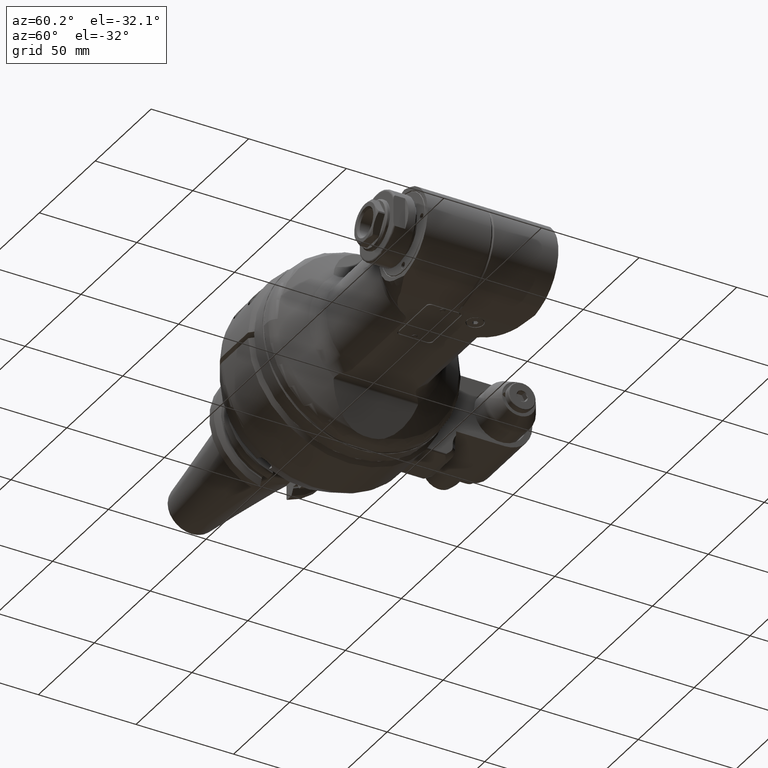
[diagram: clean part render]
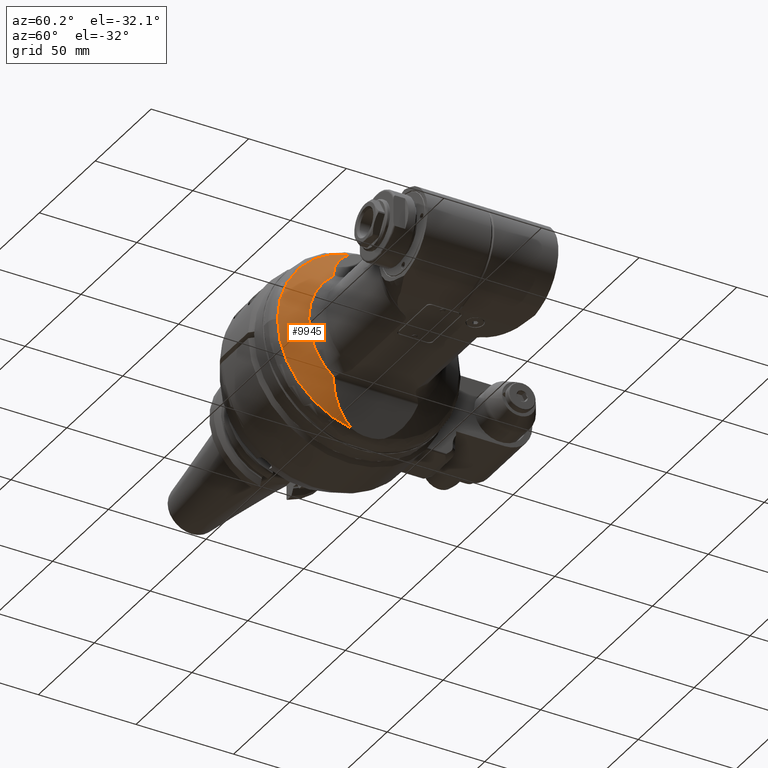
[diagram: same view with one face highlighted and labeled with its STEP entity id]
A machine part, auxiliary view. The second image highlights one B-rep face of the part: STEP entity #9945.
In plain terms, the highlighted conical surface has half-angle 60 deg.
Its self-contained STEP definition (entity closure, byte-faithful):
#56=ELLIPSE('',#10702,31.1727494163443,22.7387822282697);
#58=ELLIPSE('',#10708,31.1727494163443,22.7387822282698);
#73=B_SPLINE_CURVE_WITH_KNOTS('',3,(#15269,#15270,#15271,#15272,#15273,
#15274,#15275,#15276),.UNSPECIFIED.,.F.,.F.,(4,2,2,4),(-2.26058373671242,
-2.22722554832336,-2.19364969071324,-2.18673200160694),.UNSPECIFIED.);
#78=B_SPLINE_CURVE_WITH_KNOTS('',3,(#15324,#15325,#15326,#15327,#15328,
#15329,#15330,#15331),.UNSPECIFIED.,.F.,.F.,(4,2,2,4),(-4.49336199562233,
-4.47017861094728,-4.43766754537717,-4.4182121191954),.UNSPECIFIED.);
#512=CONICAL_SURFACE('',#10704,40.5,1.0471975511966);
#2220=FACE_OUTER_BOUND('',#2861,.T.);
#2861=EDGE_LOOP('',(#6882,#6883,#6884,#6885,#6886,#6887,#6888));
#3593=CIRCLE('',#10705,34.5);
#3594=CIRCLE('',#10706,46.5);
#3595=CIRCLE('',#10707,46.5);
#4188=VERTEX_POINT('',#15266);
#4189=VERTEX_POINT('',#15268);
#4191=VERTEX_POINT('',#15307);
#4193=VERTEX_POINT('',#15322);
#4194=VERTEX_POINT('',#15323);
#4195=VERTEX_POINT('',#15333);
#4196=VERTEX_POINT('',#15335);
#5239=EDGE_CURVE('',#4189,#4188,#73,.T.);
#5243=EDGE_CURVE('',#4191,#4188,#56,.T.);
#5246=EDGE_CURVE('',#4193,#4194,#78,.T.);
#5247=EDGE_CURVE('',#4193,#4189,#3593,.T.);
#5248=EDGE_CURVE('',#4195,#4191,#3594,.T.);
#5249=EDGE_CURVE('',#4196,#4195,#3595,.T.);
#5250=EDGE_CURVE('',#4196,#4194,#58,.T.);
#6882=ORIENTED_EDGE('',*,*,#5246,.F.);
#6883=ORIENTED_EDGE('',*,*,#5247,.T.);
#6884=ORIENTED_EDGE('',*,*,#5239,.T.);
#6885=ORIENTED_EDGE('',*,*,#5243,.F.);
#6886=ORIENTED_EDGE('',*,*,#5248,.F.);
#6887=ORIENTED_EDGE('',*,*,#5249,.F.);
#6888=ORIENTED_EDGE('',*,*,#5250,.T.);
#9945=ADVANCED_FACE('',(#2220),#512,.T.);
#10702=AXIS2_PLACEMENT_3D('',#15308,#12074,#12075);
#10704=AXIS2_PLACEMENT_3D('',#15321,#12078,#12079);
#10705=AXIS2_PLACEMENT_3D('',#15332,#12080,#12081);
#10706=AXIS2_PLACEMENT_3D('',#15334,#12082,#12083);
#10707=AXIS2_PLACEMENT_3D('',#15336,#12084,#12085);
#10708=AXIS2_PLACEMENT_3D('',#15337,#12086,#12087);
#12074=DIRECTION('center_axis',(0.939692620785897,0.,0.342020143325699));
#12075=DIRECTION('ref_axis',(0.342020143325699,4.48526230226004E-15,-0.939692620785897));
#12078=DIRECTION('center_axis',(-1.,0.,0.));
#12079=DIRECTION('ref_axis',(0.,-1.,-4.71959209240214E-14));
#12080=DIRECTION('center_axis',(-1.,0.,0.));
#12081=DIRECTION('ref_axis',(0.,-0.624664511069717,-0.780893237651621));
#12082=DIRECTION('center_axis',(-1.,0.,0.));
#12083=DIRECTION('ref_axis',(0.,-0.177495530843392,-0.984121606576455));
#12084=DIRECTION('center_axis',(-1.,0.,0.));
#12085=DIRECTION('ref_axis',(0.,-0.177495530843392,-0.984121606576455));
#12086=DIRECTION('center_axis',(-0.939692620785897,0.,0.342020143325699));
#12087=DIRECTION('ref_axis',(-0.342020143325699,7.39186362644738E-16,-0.939692620785897));
#15266=CARTESIAN_POINT('',(27.04205971436,-21.59708585293,27.6319194267));
#15268=CARTESIAN_POINT('',(27.37157894783,-21.55092563201,26.9408166991));
#15269=CARTESIAN_POINT('Ctrl Pts',(27.371578947827,-21.5509256319532,26.9408166991217));
#15270=CARTESIAN_POINT('Ctrl Pts',(27.3132347012229,-21.5912369054806,27.0379800164879));
#15271=CARTESIAN_POINT('Ctrl Pts',(27.2573525851273,-21.6173901539859,27.1409621842124));
#15272=CARTESIAN_POINT('Ctrl Pts',(27.1596369835571,-21.6383299644524,27.3404435454438));
#15273=CARTESIAN_POINT('Ctrl Pts',(27.1104686239072,-21.6342180863404,27.4522888820599));
#15274=CARTESIAN_POINT('Ctrl Pts',(27.0588934682952,-21.608065250833,27.5863128476503));
#15275=CARTESIAN_POINT('Ctrl Pts',(27.050335084464,-21.6028999944633,27.609183034189));
#15276=CARTESIAN_POINT('Ctrl Pts',(27.0420597143565,-21.5970858529229,27.6319194266969));
#15307=CARTESIAN_POINT('',(20.44337571763,-8.253542184218,45.7616547058));
#15308=CARTESIAN_POINT('Origin',(30.377955770746,-1.77635683940025E-14,
18.4666203381165));
#15321=CARTESIAN_POINT('Origin',(23.90747733277,0.,0.));
#15322=CARTESIAN_POINT('',(27.37157894791,-21.55092563191,-26.94081669898));
#15323=CARTESIAN_POINT('',(27.04205971436,-21.59708585293,-27.6319194267));
#15324=CARTESIAN_POINT('Ctrl Pts',(27.3715789479091,-21.5509256318965,-26.940816698985));
#15325=CARTESIAN_POINT('Ctrl Pts',(27.3322630702072,-21.5780898030477,-27.0062912114635));
#15326=CARTESIAN_POINT('Ctrl Pts',(27.293721890646,-21.5993216748208,-27.0747738811493));
#15327=CARTESIAN_POINT('Ctrl Pts',(27.2052684673191,-21.6330294345332,-27.2437727305676));
#15328=CARTESIAN_POINT('Ctrl Pts',(27.1568615748489,-21.6383969971774,-27.3465592802232));
#15329=CARTESIAN_POINT('Ctrl Pts',(27.0879226423856,-21.623328103464,-27.5104535586471));
#15330=CARTESIAN_POINT('Ctrl Pts',(27.0639668786932,-21.6124774731827,-27.5717299873576));
#15331=CARTESIAN_POINT('Ctrl Pts',(27.0420597143565,-21.5970858529229,-27.6319194266969));
#15332=CARTESIAN_POINT('Origin',(27.37157894791,0.,0.));
#15333=CARTESIAN_POINT('',(20.44337571763,-46.5,5.69460761603519E-15));
#15334=CARTESIAN_POINT('Origin',(20.44337571763,0.,0.));
#15335=CARTESIAN_POINT('',(20.44337571763,-8.253542184216,-45.76165470581));
#15336=CARTESIAN_POINT('Origin',(20.44337571763,0.,0.));
#15337=CARTESIAN_POINT('Origin',(30.377955770746,0.,-18.4666203381165));